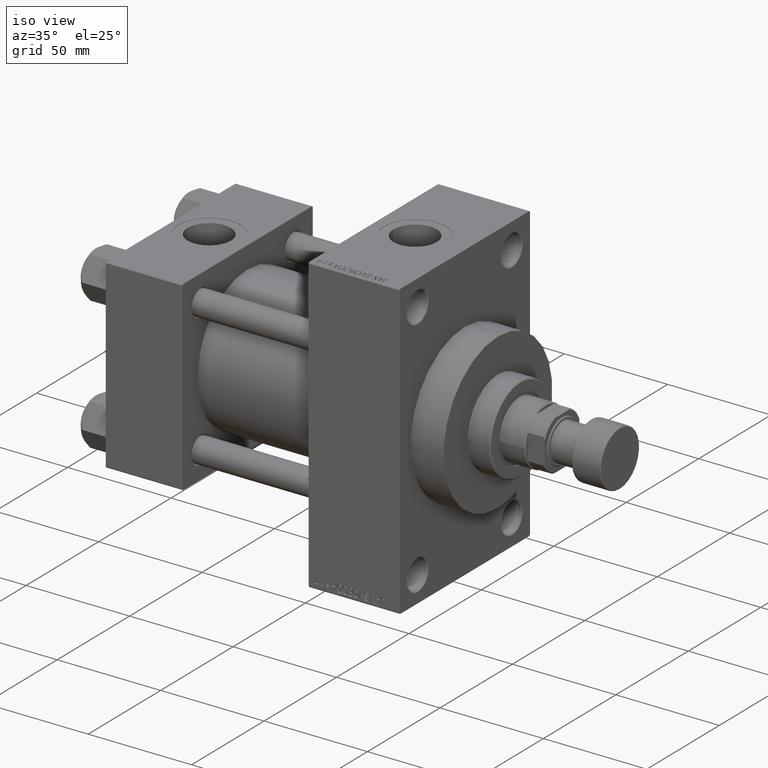
[diagram: clean part render]
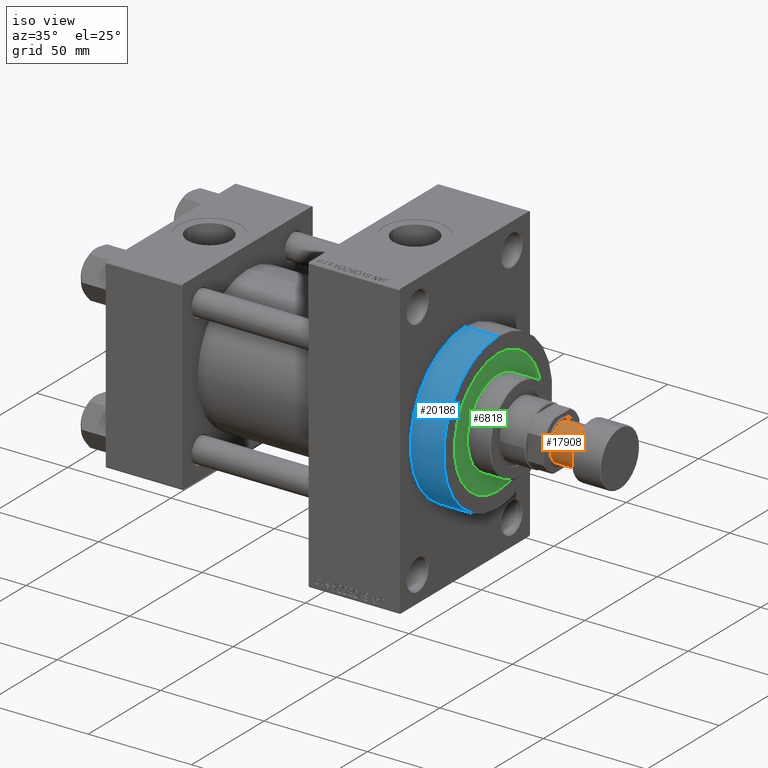
[diagram: same view with three faces highlighted in distinct colors, each labeled with its STEP entity id]
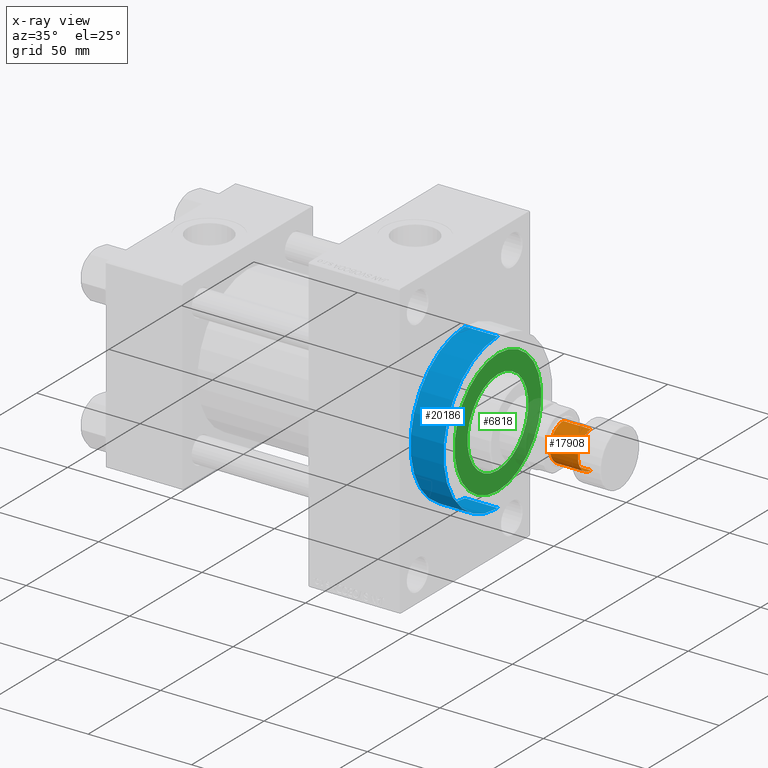
[diagram: x-ray of the same camera — body ghosted, the three highlighted faces saturated]
A machine part, iso view with three faces highlighted in distinct colors.
The next image is the same camera in x-ray (body ghosted, the three faces saturated) — at least one of them is partly hidden behind the body in this view.
Their STEP definitions:

[orange] entity #17908 — the highlighted cylindrical surface (edge-blend (fillet) strip) has radius 9 mm, axis along (1, 0, 0).
#1466 = CARTESIAN_POINT ( 'NONE',  ( 9.000000000000000000, 0.000000000000000000, -14.00000000000000000 ) ) ;
#1799 = EDGE_CURVE ( 'NONE', #32940, #7138, #4907, .T. ) ;
#4326 = VERTEX_POINT ( 'NONE', #6259 ) ;
#4907 = CIRCLE ( 'NONE', #28225, 9.000000000000000000 ) ;
#6259 = CARTESIAN_POINT ( 'NONE',  ( -9.000000000000000000, 1.102182119232617714E-15, -27.50000000000000000 ) ) ;
#7138 = VERTEX_POINT ( 'NONE', #36189 ) ;
#14690 = DIRECTION ( 'NONE',  ( 0.000000000000000000, 0.000000000000000000, -1.000000000000000000 ) ) ;
#15530 = FACE_OUTER_BOUND ( 'NONE', #47238, .T. ) ;
#15543 = VERTEX_POINT ( 'NONE', #49557 ) ;
#15958 = ORIENTED_EDGE ( 'NONE', *, *, #26950, .F. ) ;
#17908 = ADVANCED_FACE ( 'NONE', ( #15530 ), #38420, .T. ) ;
#18719 = CARTESIAN_POINT ( 'NONE',  ( 0.000000000000000000, 0.000000000000000000, -27.50000000000000000 ) ) ;
#18811 = CARTESIAN_POINT ( 'NONE',  ( 0.000000000000000000, 0.000000000000000000, -27.50000000000000000 ) ) ;
#19047 = CARTESIAN_POINT ( 'NONE',  ( 0.000000000000000000, 0.000000000000000000, -14.00000000000000000 ) ) ;
#19469 = CIRCLE ( 'NONE', #44360, 9.000000000000000000 ) ;
#21349 = CARTESIAN_POINT ( 'NONE',  ( -9.000000000000000000, 1.102182119232617714E-15, -27.50000000000000000 ) ) ;
#23068 = DIRECTION ( 'NONE',  ( -1.000000000000000000, 0.000000000000000000, 0.000000000000000000 ) ) ;
#26950 = EDGE_CURVE ( 'NONE', #15543, #4326, #19469, .T. ) ;
#27928 = VECTOR ( 'NONE', #40707, 1000.000000000000000 ) ;
#28225 = AXIS2_PLACEMENT_3D ( 'NONE', #19047, #30607, #23068 ) ;
#30133 = DIRECTION ( 'NONE',  ( -0.000000000000000000, -0.000000000000000000, 1.000000000000000000 ) ) ;
#30177 = CARTESIAN_POINT ( 'NONE',  ( 9.000000000000000000, 0.000000000000000000, -27.50000000000000000 ) ) ;
#30394 = ORIENTED_EDGE ( 'NONE', *, *, #1799, .T. ) ;
#30607 = DIRECTION ( 'NONE',  ( 0.000000000000000000, 0.000000000000000000, -1.000000000000000000 ) ) ;
#32940 = VERTEX_POINT ( 'NONE', #1466 ) ;
#33707 = DIRECTION ( 'NONE',  ( -0.000000000000000000, -0.000000000000000000, 1.000000000000000000 ) ) ;
#35328 = VECTOR ( 'NONE', #33707, 1000.000000000000000 ) ;
#36189 = CARTESIAN_POINT ( 'NONE',  ( -9.000000000000000000, 1.102182119232617714E-15, -14.00000000000000000 ) ) ;
#38420 = CYLINDRICAL_SURFACE ( 'NONE', #45472, 9.000000000000000000 ) ;
#39656 = ORIENTED_EDGE ( 'NONE', *, *, #42501, .F. ) ;
#40707 = DIRECTION ( 'NONE',  ( -0.000000000000000000, -0.000000000000000000, 1.000000000000000000 ) ) ;
#41481 = LINE ( 'NONE', #30177, #35328 ) ;
#41507 = ORIENTED_EDGE ( 'NONE', *, *, #47244, .T. ) ;
#41595 = DIRECTION ( 'NONE',  ( -1.000000000000000000, 0.000000000000000000, 0.000000000000000000 ) ) ;
#42501 = EDGE_CURVE ( 'NONE', #4326, #7138, #48239, .T. ) ;
#44360 = AXIS2_PLACEMENT_3D ( 'NONE', #18719, #14690, #41595 ) ;
#44516 = DIRECTION ( 'NONE',  ( 1.000000000000000000, 0.000000000000000000, 0.000000000000000000 ) ) ;
#45472 = AXIS2_PLACEMENT_3D ( 'NONE', #18811, #30133, #44516 ) ;
#47238 = EDGE_LOOP ( 'NONE', ( #39656, #15958, #41507, #30394 ) ) ;
#47244 = EDGE_CURVE ( 'NONE', #15543, #32940, #41481, .T. ) ;
#48239 = LINE ( 'NONE', #21349, #27928 ) ;
#49557 = CARTESIAN_POINT ( 'NONE',  ( 9.000000000000000000, 0.000000000000000000, -27.50000000000000000 ) ) ;

[blue] entity #20186 — the highlighted cylindrical surface (partial cylindrical patch) has radius 37.5 mm, axis along (-1, -0, -0).
#475 = VERTEX_POINT ( 'NONE', #7260 ) ;
#1213 = DIRECTION ( 'NONE',  ( 0.000000000000000000, 0.000000000000000000, -1.000000000000000000 ) ) ;
#2609 = EDGE_CURVE ( 'NONE', #33559, #36063, #6562, .T. ) ;
#2732 = DIRECTION ( 'NONE',  ( -1.000000000000000000, -0.000000000000000000, -0.000000000000000000 ) ) ;
#2995 = AXIS2_PLACEMENT_3D ( 'NONE', #17813, #33159, #14030 ) ;
#5176 = EDGE_CURVE ( 'NONE', #33559, #475, #33199, .T. ) ;
#6562 = CIRCLE ( 'NONE', #26661, 37.50000000000000711 ) ;
#7260 = CARTESIAN_POINT ( 'NONE',  ( 142.0000000000000284, 0.000000000000000000, 37.50000000000000711 ) ) ;
#7717 = DIRECTION ( 'NONE',  ( 1.000000000000000000, 0.000000000000000000, 0.000000000000000000 ) ) ;
#10304 = CARTESIAN_POINT ( 'NONE',  ( 158.0000000000000284, 0.000000000000000000, 37.50000000000000711 ) ) ;
#10942 = CARTESIAN_POINT ( 'NONE',  ( 158.0000000000000284, 4.592425496802575156E-15, -37.50000000000000711 ) ) ;
#14030 = DIRECTION ( 'NONE',  ( 0.000000000000000000, 0.000000000000000000, 1.000000000000000000 ) ) ;
#14284 = FACE_OUTER_BOUND ( 'NONE', #44349, .T. ) ;
#17539 = EDGE_CURVE ( 'NONE', #36063, #29772, #26047, .T. ) ;
#17813 = CARTESIAN_POINT ( 'NONE',  ( 158.0000000000000284, 0.000000000000000000, 0.000000000000000000 ) ) ;
#20186 = ADVANCED_FACE ( 'NONE', ( #14284 ), #21592, .T. ) ;
#21592 = CYLINDRICAL_SURFACE ( 'NONE', #2995, 37.50000000000000711 ) ;
#21982 = CIRCLE ( 'NONE', #49286, 37.50000000000000711 ) ;
#22859 = ORIENTED_EDGE ( 'NONE', *, *, #5176, .T. ) ;
#23704 = CARTESIAN_POINT ( 'NONE',  ( 142.0000000000000284, 4.592425496802575156E-15, -37.50000000000000711 ) ) ;
#26047 = LINE ( 'NONE', #10942, #45437 ) ;
#26661 = AXIS2_PLACEMENT_3D ( 'NONE', #42174, #7717, #38892 ) ;
#27448 = CARTESIAN_POINT ( 'NONE',  ( 158.0000000000000284, 4.592425496802575156E-15, -37.50000000000000711 ) ) ;
#28471 = CARTESIAN_POINT ( 'NONE',  ( 158.0000000000000284, 0.000000000000000000, 37.50000000000000711 ) ) ;
#28900 = DIRECTION ( 'NONE',  ( 1.000000000000000000, 0.000000000000000000, 0.000000000000000000 ) ) ;
#29772 = VERTEX_POINT ( 'NONE', #23704 ) ;
#30132 = EDGE_CURVE ( 'NONE', #475, #29772, #21982, .T. ) ;
#32006 = ORIENTED_EDGE ( 'NONE', *, *, #17539, .F. ) ;
#33156 = VECTOR ( 'NONE', #2732, 1000.000000000000000 ) ;
#33159 = DIRECTION ( 'NONE',  ( -1.000000000000000000, -0.000000000000000000, -0.000000000000000000 ) ) ;
#33199 = LINE ( 'NONE', #10304, #33156 ) ;
#33559 = VERTEX_POINT ( 'NONE', #28471 ) ;
#36063 = VERTEX_POINT ( 'NONE', #27448 ) ;
#38678 = ORIENTED_EDGE ( 'NONE', *, *, #30132, .T. ) ;
#38892 = DIRECTION ( 'NONE',  ( 0.000000000000000000, 0.000000000000000000, -1.000000000000000000 ) ) ;
#41376 = DIRECTION ( 'NONE',  ( -1.000000000000000000, -0.000000000000000000, -0.000000000000000000 ) ) ;
#42174 = CARTESIAN_POINT ( 'NONE',  ( 158.0000000000000284, 0.000000000000000000, 0.000000000000000000 ) ) ;
#43723 = CARTESIAN_POINT ( 'NONE',  ( 142.0000000000000284, 0.000000000000000000, 0.000000000000000000 ) ) ;
#44228 = ORIENTED_EDGE ( 'NONE', *, *, #2609, .F. ) ;
#44349 = EDGE_LOOP ( 'NONE', ( #32006, #44228, #22859, #38678 ) ) ;
#45437 = VECTOR ( 'NONE', #41376, 1000.000000000000000 ) ;
#49286 = AXIS2_PLACEMENT_3D ( 'NONE', #43723, #28900, #1213 ) ;

[green] entity #6818 — the highlighted planar face has unit normal (1, -0, -0).
#596 = CARTESIAN_POINT ( 'NONE',  ( 30.00000000000000000, 3.673940397442059178E-15, 43.25999999999999801 ) ) ;
#5041 = AXIS2_PLACEMENT_3D ( 'NONE', #49597, #15148, #45808 ) ;
#5595 = CARTESIAN_POINT ( 'NONE',  ( 0.000000000000000000, 0.000000000000000000, 43.25999999999999801 ) ) ;
#5899 = DIRECTION ( 'NONE',  ( 1.000000000000000000, 0.000000000000000000, 0.000000000000000000 ) ) ;
#6653 = EDGE_CURVE ( 'NONE', #18381, #33550, #44397, .T. ) ;
#6818 = ADVANCED_FACE ( 'NONE', ( #26719, #35008 ), #27218, .T. ) ;
#7432 = VERTEX_POINT ( 'NONE', #20726 ) ;
#7945 = ORIENTED_EDGE ( 'NONE', *, *, #31494, .T. ) ;
#9073 = AXIS2_PLACEMENT_3D ( 'NONE', #5595, #47088, #35803 ) ;
#11391 = VERTEX_POINT ( 'NONE', #29686 ) ;
#11558 = CIRCLE ( 'NONE', #32460, 30.00000000000000000 ) ;
#12160 = EDGE_CURVE ( 'NONE', #7432, #11391, #34055, .T. ) ;
#12410 = AXIS2_PLACEMENT_3D ( 'NONE', #39276, #23200, #38530 ) ;
#12670 = DIRECTION ( 'NONE',  ( 1.000000000000000000, 0.000000000000000000, 0.000000000000000000 ) ) ;
#13663 = EDGE_CURVE ( 'NONE', #11391, #7432, #46929, .T. ) ;
#15148 = DIRECTION ( 'NONE',  ( 0.000000000000000000, 0.000000000000000000, 1.000000000000000000 ) ) ;
#18381 = VERTEX_POINT ( 'NONE', #596 ) ;
#19991 = CARTESIAN_POINT ( 'NONE',  ( 0.000000000000000000, 0.000000000000000000, 43.25999999999999801 ) ) ;
#20726 = CARTESIAN_POINT ( 'NONE',  ( 21.00000000000000000, 2.571758278209441661E-15, 43.25999999999999801 ) ) ;
#20805 = ORIENTED_EDGE ( 'NONE', *, *, #12160, .F. ) ;
#23200 = DIRECTION ( 'NONE',  ( 0.000000000000000000, 0.000000000000000000, 1.000000000000000000 ) ) ;
#26719 = FACE_BOUND ( 'NONE', #49444, .T. ) ;
#27218 = PLANE ( 'NONE',  #5041 ) ;
#29686 = CARTESIAN_POINT ( 'NONE',  ( -21.00000000000000000, 0.000000000000000000, 43.25999999999999801 ) ) ;
#31494 = EDGE_CURVE ( 'NONE', #33550, #18381, #11558, .T. ) ;
#31571 = ORIENTED_EDGE ( 'NONE', *, *, #13663, .F. ) ;
#32460 = AXIS2_PLACEMENT_3D ( 'NONE', #19991, #43588, #12670 ) ;
#33550 = VERTEX_POINT ( 'NONE', #43302 ) ;
#34055 = CIRCLE ( 'NONE', #40464, 21.00000000000000000 ) ;
#35008 = FACE_OUTER_BOUND ( 'NONE', #48238, .T. ) ;
#35803 = DIRECTION ( 'NONE',  ( 1.000000000000000000, 0.000000000000000000, 0.000000000000000000 ) ) ;
#36093 = ORIENTED_EDGE ( 'NONE', *, *, #6653, .T. ) ;
#38530 = DIRECTION ( 'NONE',  ( 1.000000000000000000, 0.000000000000000000, 0.000000000000000000 ) ) ;
#39276 = CARTESIAN_POINT ( 'NONE',  ( 0.000000000000000000, 0.000000000000000000, 43.25999999999999801 ) ) ;
#40376 = CARTESIAN_POINT ( 'NONE',  ( 0.000000000000000000, 0.000000000000000000, 43.25999999999999801 ) ) ;
#40464 = AXIS2_PLACEMENT_3D ( 'NONE', #40376, #40875, #5899 ) ;
#40875 = DIRECTION ( 'NONE',  ( 0.000000000000000000, 0.000000000000000000, 1.000000000000000000 ) ) ;
#43302 = CARTESIAN_POINT ( 'NONE',  ( -30.00000000000000000, 0.000000000000000000, 43.25999999999999801 ) ) ;
#43588 = DIRECTION ( 'NONE',  ( 0.000000000000000000, 0.000000000000000000, 1.000000000000000000 ) ) ;
#44397 = CIRCLE ( 'NONE', #9073, 30.00000000000000000 ) ;
#45808 = DIRECTION ( 'NONE',  ( 1.000000000000000000, 0.000000000000000000, -0.000000000000000000 ) ) ;
#46929 = CIRCLE ( 'NONE', #12410, 21.00000000000000000 ) ;
#47088 = DIRECTION ( 'NONE',  ( 0.000000000000000000, 0.000000000000000000, 1.000000000000000000 ) ) ;
#48238 = EDGE_LOOP ( 'NONE', ( #7945, #36093 ) ) ;
#49444 = EDGE_LOOP ( 'NONE', ( #31571, #20805 ) ) ;
#49597 = CARTESIAN_POINT ( 'NONE',  ( 0.000000000000000000, 0.000000000000000000, 43.25999999999999801 ) ) ;